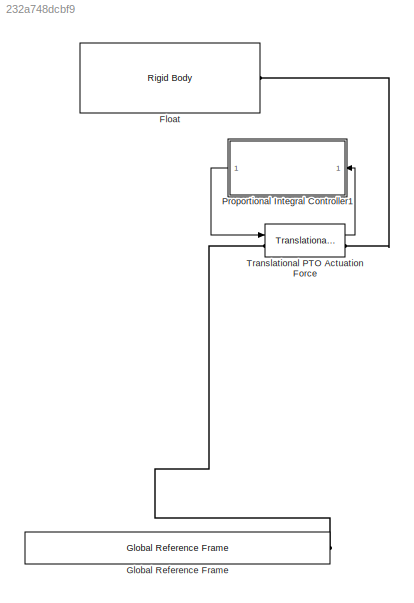
MODEL slx_232a748dcbf9
KIND model
CONFIG AbsTol = auto
CONFIG EnableMultiTasking = on
CONFIG FixedStep = 0.02
CONFIG MaxStep = 0.02
CONFIG MinStep = auto
CONFIG RelTol = 1e-3
CONFIG SampleTimeConstraint = Unconstrained
CONFIG SolverName = ode4
CONFIG StartTime = 0
CONFIG StopTime = 200
BLOCK [Reference] Float  REF=WECSim_Lib_Body_Elements/Rigid Body
  AttributesFormatString = %<body>
  Ports = [0, 0, 0, 0, 0, 0, 1]
  SourceBlock = WECSim_Lib_Body_Elements/Rigid Body
  SourceType = Rigid Body
BLOCK [Reference] Global Reference Frame  REF=WECSim_Lib_Frames/Global Reference Frame
  Ports = [0, 0, 0, 0, 0, 0, 1]
  SourceBlock = WECSim_Lib_Frames/Global Reference Frame
  SourceType = Frames
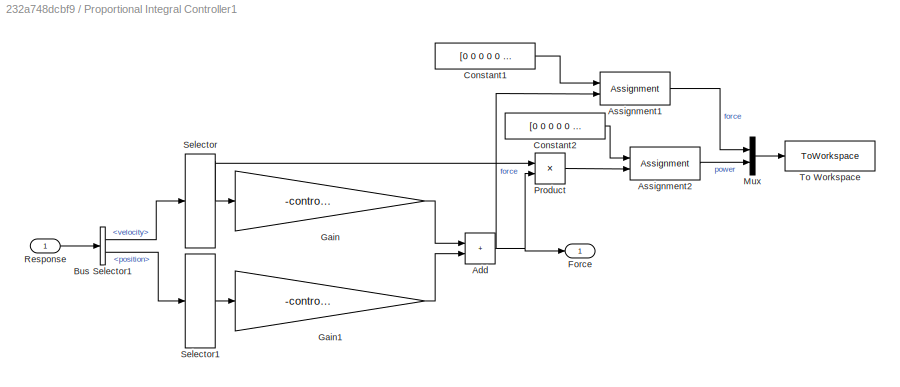
BLOCK [SubSystem] Proportional Integral Controller1
  Ports = [1, 1]
BLOCK [Sum] Proportional Integral Controller1/Add
  IconShape = rectangular
  Ports = [2, 1]
BLOCK [Assignment] Proportional Integral Controller1/Assignment1
  IndexOptions = Index vector (dialog)
  Indices = 3
  OutputSizes = 1
  Ports = [2, 1]
BLOCK [Assignment] Proportional Integral Controller1/Assignment2
  IndexOptions = Index vector (dialog)
  Indices = 3
  OutputSizes = 1
  Ports = [2, 1]
BLOCK [BusSelector] Proportional Integral Controller1/Bus Selector1
  OutputSignals = velocity,position
  Ports = [1, 2]
BLOCK [Constant] Proportional Integral Controller1/Constant1
  Value = [0 0 0 0 0 0]
BLOCK [Constant] Proportional Integral Controller1/Constant2
  Value = [0 0 0 0 0 0]
BLOCK [Outport] Proportional Integral Controller1/Force
BLOCK [Gain] Proportional Integral Controller1/Gain
  Gain = -controller.proportionalIntegral.Kp
BLOCK [Gain] Proportional Integral Controller1/Gain1
  Gain = -controller.proportionalIntegral.Ki
BLOCK [Mux] Proportional Integral Controller1/Mux
  DisplayOption = bar
  Inputs = 2
  Ports = [2, 1]
BLOCK [Product] Proportional Integral Controller1/Product
  Ports = [2, 1]
BLOCK [Inport] Proportional Integral Controller1/Response
BLOCK [Selector] Proportional Integral Controller1/Selector
  IndexOptions = Index vector (dialog)
  Indices = 3
  InputPortWidth = 6
  OutputSizes = 1
  Ports = [1, 1]
BLOCK [Selector] Proportional Integral Controller1/Selector1
  IndexOptions = Index vector (dialog)
  Indices = 3
  InputPortWidth = 6
  OutputSizes = 1
  Ports = [1, 1]
BLOCK [ToWorkspace] Proportional Integral Controller1/To Workspace
  FixptAsFi = on
  MaxDataPoints = inf
  Ports = [1]
  SampleTime = simu.dtOut
  SaveFormat = Structure With Time
  VariableName = controller1_out
BLOCK [Reference] Translational PTO Actuation Force  REF=WECSim_Lib_PTOs/Translational PTO
Actuation Force
  AttributesFormatString = %<pto>
  Ports = [1, 1, 0, 0, 0, 1, 1]
  SourceBlock = WECSim_Lib_PTOs/Translational PTO\nActuation Force
  SourceType = PTO
NET Proportional Integral Controller1/Add:1 -> Proportional Integral Controller1/Assignment1:2, Proportional Integral Controller1/Force:1, Proportional Integral Controller1/Product:2
LINE Proportional Integral Controller1/Assignment1:1 -> Proportional Integral Controller1/Mux:1
LINE Proportional Integral Controller1/Assignment2:1 -> Proportional Integral Controller1/Mux:2
LINE Proportional Integral Controller1/Bus Selector1:1 -> Proportional Integral Controller1/Selector:1
LINE Proportional Integral Controller1/Bus Selector1:2 -> Proportional Integral Controller1/Selector1:1
LINE Proportional Integral Controller1/Constant1:1 -> Proportional Integral Controller1/Assignment1:1
LINE Proportional Integral Controller1/Constant2:1 -> Proportional Integral Controller1/Assignment2:1
LINE Proportional Integral Controller1/Gain1:1 -> Proportional Integral Controller1/Add:2
LINE Proportional Integral Controller1/Gain:1 -> Proportional Integral Controller1/Add:1
LINE Proportional Integral Controller1/Mux:1 -> Proportional Integral Controller1/To Workspace:1
LINE Proportional Integral Controller1/Product:1 -> Proportional Integral Controller1/Assignment2:2
LINE Proportional Integral Controller1/Response:1 -> Proportional Integral Controller1/Bus Selector1:1
LINE Proportional Integral Controller1/Selector1:1 -> Proportional Integral Controller1/Gain1:1
NET Proportional Integral Controller1/Selector:1 -> Proportional Integral Controller1/Gain:1, Proportional Integral Controller1/Product:1
LINE Proportional Integral Controller1:1 -> Translational PTO Actuation Force:1
LINE Translational PTO Actuation Force:1 -> Proportional Integral Controller1:1
PLINE Float:RConn1 -- Translational PTO Actuation Force:RConn1
PLINE Global Reference Frame:RConn1 -- Translational PTO Actuation Force:LConn1
note: NET lines group one-source signal fan-out (src -> all destinations, sorted); 1:1 wires keep LINE
